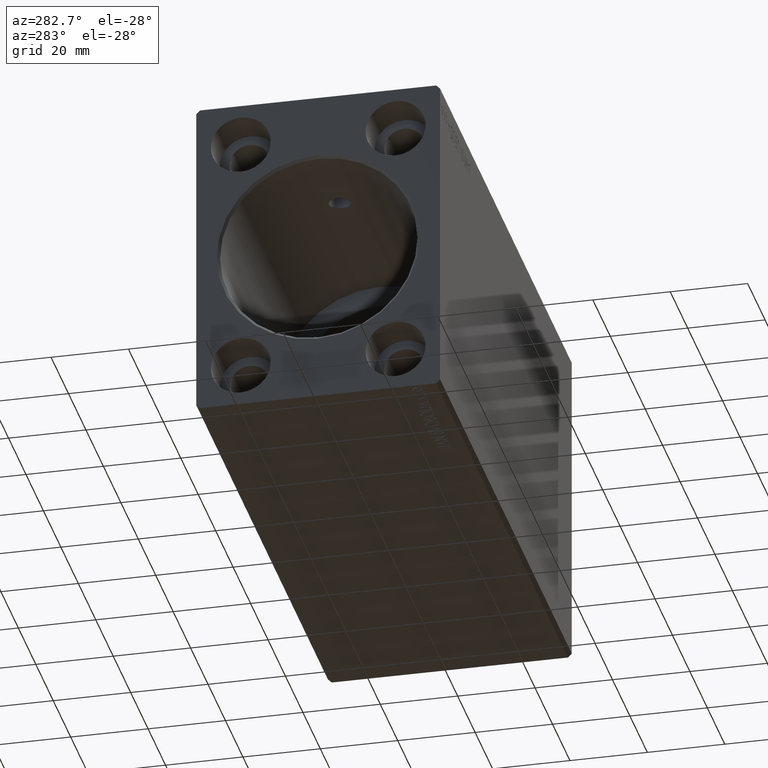
[diagram: clean part render]
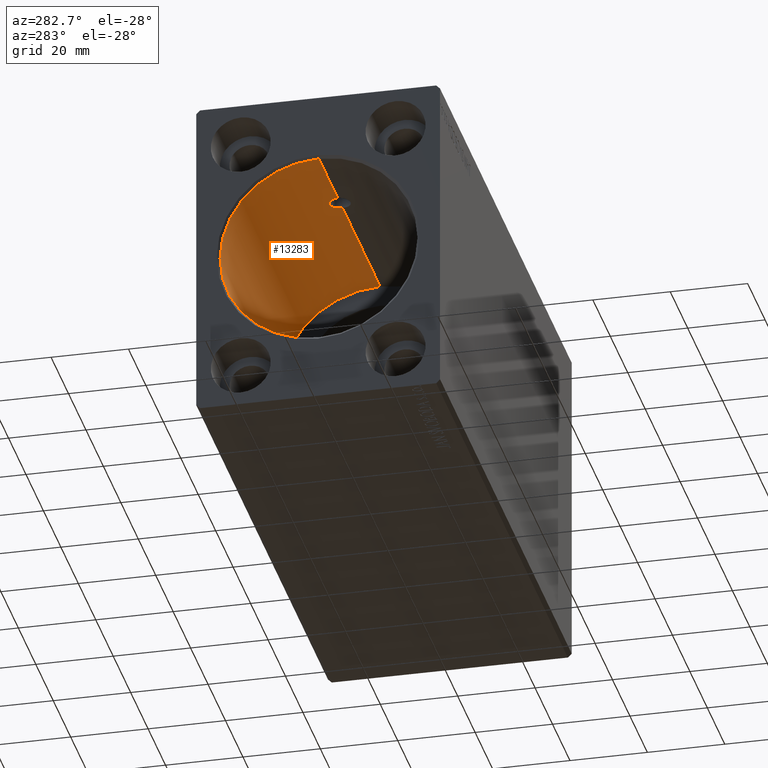
[diagram: same view with one face highlighted and labeled with its STEP entity id]
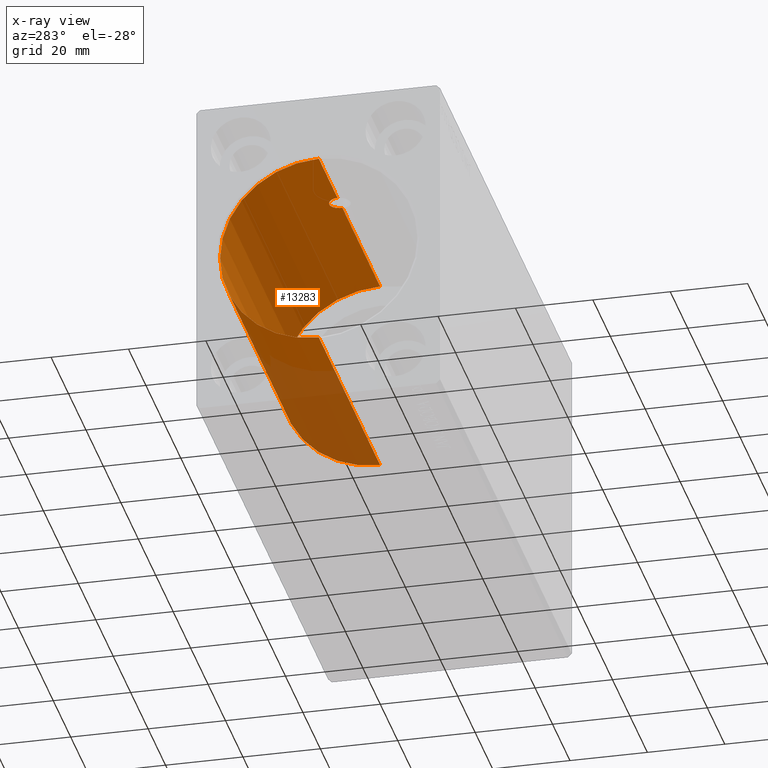
[diagram: x-ray of the same camera — body ghosted, the highlighted face saturated]
A machine part, auxiliary view. The second image highlights one B-rep face of the part: STEP entity #13283.
The next image is the same camera in x-ray: the body ghosted, the highlighted face saturated — about 24% of this face is hidden behind the body in this view.
In plain terms, the highlighted cylindrical surface (partial cylindrical patch) has radius 25.5 mm, axis along (-1, -0, -0).
Its self-contained STEP definition (entity closure, byte-faithful):
#671 = VERTEX_POINT ( 'NONE', #22326 ) ;
#712 = CARTESIAN_POINT ( 'NONE',  ( 23.32301682331572223, 2.186849450543038031, 25.40625268806380888 ) ) ;
#780 = DIRECTION ( 'NONE',  ( -1.000000000000000000, -0.000000000000000000, -0.000000000000000000 ) ) ;
#1136 = CARTESIAN_POINT ( 'NONE',  ( 22.25000000000001421, 0.1795439971740298846, 25.50000000000000355 ) ) ;
#1341 = CARTESIAN_POINT ( 'NONE',  ( 24.82149231634159392, 2.750065238390863254, 25.35127494207982579 ) ) ;
#3791 = LINE ( 'NONE', #19870, #17100 ) ;
#3992 = LINE ( 'NONE', #30143, #17278 ) ;
#4350 = CARTESIAN_POINT ( 'NONE',  ( 22.52839946558069428, 1.219090660012198235, 25.47138780348911880 ) ) ;
#4562 = CARTESIAN_POINT ( 'NONE',  ( 22.92734681539844743, 1.816470127182206351, 25.43554610187513276 ) ) ;
#7049 = EDGE_CURVE ( 'NONE', #671, #36176, #3791, .T. ) ;
#7255 = VERTEX_POINT ( 'NONE', #32188 ) ;
#7712 = DIRECTION ( 'NONE',  ( 0.000000000000000000, 0.000000000000000000, 1.000000000000000000 ) ) ;
#7776 = CARTESIAN_POINT ( 'NONE',  ( 27.18703867904413585, 1.676797748643022556, 25.44525020880456978 ) ) ;
#7988 = CARTESIAN_POINT ( 'NONE',  ( 22.33838551574565301, 0.7145913488848024686, 25.49059565528228077 ) ) ;
#8284 = EDGE_CURVE ( 'NONE', #7255, #20107, #9575, .T. ) ;
#8381 = DIRECTION ( 'NONE',  ( -1.000000000000000000, -0.000000000000000000, -0.000000000000000000 ) ) ;
#8781 = CARTESIAN_POINT ( 'NONE',  ( 71.00000000000000000, 3.122849337825750222E-15, -25.50000000000000000 ) ) ;
#9170 = ORIENTED_EDGE ( 'NONE', *, *, #22027, .T. ) ;
#9575 = CIRCLE ( 'NONE', #39692, 25.50000000000000000 ) ;
#10364 = CARTESIAN_POINT ( 'NONE',  ( 22.39041548042342455, 0.8860360456872151680, 25.48514702329194748 ) ) ;
#10480 = CIRCLE ( 'NONE', #16625, 25.50000000000000000 ) ;
#10578 = CARTESIAN_POINT ( 'NONE',  ( 23.78171663419919923, 2.471999237561343765, 25.37999251845406334 ) ) ;
#10794 = CARTESIAN_POINT ( 'NONE',  ( 27.47113695655388099, 1.220029612915041195, 25.47134265733709668 ) ) ;
#11208 = CARTESIAN_POINT ( 'NONE',  ( 27.66219387477480041, 0.7122967098376459250, 25.49065645963404236 ) ) ;
#11358 = FACE_OUTER_BOUND ( 'NONE', #21783, .T. ) ;
#13283 = ADVANCED_FACE ( 'NONE', ( #11358 ), #36430, .F. ) ;
#13363 = ORIENTED_EDGE ( 'NONE', *, *, #27995, .F. ) ;
#13733 = DIRECTION ( 'NONE',  ( -1.000000000000000000, -0.000000000000000000, -0.000000000000000000 ) ) ;
#13797 = CARTESIAN_POINT ( 'NONE',  ( 27.75000000000000000, -1.939261765858355171E-16, 25.50000000000000000 ) ) ;
#14273 = CARTESIAN_POINT ( 'NONE',  ( 27.75000000000000000, -1.939261765858355171E-16, 25.50000000000000000 ) ) ;
#14430 = CARTESIAN_POINT ( 'NONE',  ( 23.62085709230549213, 2.385906103428720115, 25.38833271868618269 ) ) ;
#14912 = DIRECTION ( 'NONE',  ( -1.000000000000000000, 0.000000000000000000, 0.000000000000000000 ) ) ;
#15238 = EDGE_CURVE ( 'NONE', #7255, #30029, #3992, .T. ) ;
#15956 = ORIENTED_EDGE ( 'NONE', *, *, #15238, .T. ) ;
#16625 = AXIS2_PLACEMENT_3D ( 'NONE', #37813, #14912, #41442 ) ;
#16949 = DIRECTION ( 'NONE',  ( 0.000000000000000000, 0.000000000000000000, 1.000000000000000000 ) ) ;
#16989 = VERTEX_POINT ( 'NONE', #41418 ) ;
#17010 = CARTESIAN_POINT ( 'NONE',  ( 25.18051211663668809, 2.749934396358980404, 25.35128913526986594 ) ) ;
#17100 = VECTOR ( 'NONE', #29723, 1000.000000000000000 ) ;
#17278 = VECTOR ( 'NONE', #780, 1000.000000000000000 ) ;
#17639 = CARTESIAN_POINT ( 'NONE',  ( 26.37837412836197615, 2.386478692563840376, 25.38828281995185066 ) ) ;
#17786 = CARTESIAN_POINT ( 'NONE',  ( 71.00000000000000000, 0.000000000000000000, 0.000000000000000000 ) ) ;
#18119 = ORIENTED_EDGE ( 'NONE', *, *, #23423, .T. ) ;
#19096 = B_SPLINE_CURVE_WITH_KNOTS ( 'NONE', 3,
 ( #13797, #33914, #26859, #11208, #20437, #10794, #40141, #7776, #40556, #24276, #27280, #17639, #37340, #30498, #33702, #30706, #17010, #1341, #39925, #36920, #37128, #10578, #14430, #712, #39710, #4562, #20649, #27489, #4350, #10364, #7988, #33493, #1136, #29859 ),
 .UNSPECIFIED., .F., .F.,
 ( 4, 2, 2, 2, 2, 2, 2, 2, 2, 2, 2, 2, 2, 2, 2, 2, 4 ),
 ( 1.884390960114856823E-19, 0.0005377504153540449200, 0.001075500830708089406, 0.001613251246062134001, 0.002151001661416177945, 0.002688752076770222540, 0.003226502492124267568, 0.003764252907478311729, 0.004302003322832356758, 0.004839753738186401352, 0.005377504153540445947, 0.005915254568894491409, 0.006453004984248536004, 0.006990755399602580598, 0.007528505814956624326, 0.008066256230310668920, 0.008604006645664711780 ),
 .UNSPECIFIED. ) ;
#19870 = CARTESIAN_POINT ( 'NONE',  ( 71.00000000000000000, 0.000000000000000000, 25.50000000000000000 ) ) ;
#20107 = VERTEX_POINT ( 'NONE', #8781 ) ;
#20437 = CARTESIAN_POINT ( 'NONE',  ( 27.60924546800651669, 0.8870333714824091276, 25.48511214065472075 ) ) ;
#20649 = CARTESIAN_POINT ( 'NONE',  ( 22.81367472156660625, 1.677664168439503056, 25.44518982471207735 ) ) ;
#21783 = EDGE_LOOP ( 'NONE', ( #13363, #23650, #15956, #18119, #23751, #9170 ) ) ;
#22027 = EDGE_CURVE ( 'NONE', #36176, #16989, #10480, .T. ) ;
#22326 = CARTESIAN_POINT ( 'NONE',  ( 22.25000000000000355, -2.520173933909566415E-23, 25.50000000000000000 ) ) ;
#23423 = EDGE_CURVE ( 'NONE', #30029, #671, #19096, .T. ) ;
#23576 = DIRECTION ( 'NONE',  ( -1.000000000000000000, 0.000000000000000000, 0.000000000000000000 ) ) ;
#23650 = ORIENTED_EDGE ( 'NONE', *, *, #8284, .F. ) ;
#23751 = ORIENTED_EDGE ( 'NONE', *, *, #7049, .T. ) ;
#24276 = CARTESIAN_POINT ( 'NONE',  ( 26.81737431410829942, 2.071662962496987337, 25.41602582305861446 ) ) ;
#24955 = VECTOR ( 'NONE', #8381, 1000.000000000000000 ) ;
#25520 = CARTESIAN_POINT ( 'NONE',  ( 0.7000000000000616840, 0.000000000000000000, 25.50000000000000000 ) ) ;
#25775 = CARTESIAN_POINT ( 'NONE',  ( 71.00000000000000000, 0.000000000000000000, 0.000000000000000000 ) ) ;
#26859 = CARTESIAN_POINT ( 'NONE',  ( 27.73214168976364746, 0.3606169945932546916, 25.49805656769039786 ) ) ;
#27280 = CARTESIAN_POINT ( 'NONE',  ( 26.67899044711617407, 2.185448893543724402, 25.40637711736232518 ) ) ;
#27489 = CARTESIAN_POINT ( 'NONE',  ( 22.61454708910615352, 1.379923800465350903, 25.46307233195958375 ) ) ;
#27995 = EDGE_CURVE ( 'NONE', #20107, #16989, #37941, .T. ) ;
#29723 = DIRECTION ( 'NONE',  ( -1.000000000000000000, -0.000000000000000000, -0.000000000000000000 ) ) ;
#29859 = CARTESIAN_POINT ( 'NONE',  ( 22.25000000000000355, -2.520173933909566415E-23, 25.50000000000000000 ) ) ;
#30029 = VERTEX_POINT ( 'NONE', #14273 ) ;
#30143 = CARTESIAN_POINT ( 'NONE',  ( 71.00000000000000000, 0.000000000000000000, 25.50000000000000000 ) ) ;
#30498 = CARTESIAN_POINT ( 'NONE',  ( 25.88758609357713780, 2.608978271227876178, 25.36627648877552232 ) ) ;
#30706 = CARTESIAN_POINT ( 'NONE',  ( 25.35904867845210831, 2.732462580437266642, 25.35320314918266149 ) ) ;
#32188 = CARTESIAN_POINT ( 'NONE',  ( 71.00000000000000000, 0.000000000000000000, 25.50000000000000000 ) ) ;
#33493 = CARTESIAN_POINT ( 'NONE',  ( 22.26799626100015672, 0.3619226834345089516, 25.49804148612619414 ) ) ;
#33702 = CARTESIAN_POINT ( 'NONE',  ( 25.71412694923393261, 2.661820881908839809, 25.36071708903062571 ) ) ;
#33914 = CARTESIAN_POINT ( 'NONE',  ( 27.75000000000000355, 0.1818411675653315851, 25.50000000000000000 ) ) ;
#36176 = VERTEX_POINT ( 'NONE', #25520 ) ;
#36430 = CYLINDRICAL_SURFACE ( 'NONE', #37747, 25.50000000000000000 ) ;
#36920 = CARTESIAN_POINT ( 'NONE',  ( 24.28632799911198958, 2.661865185172591186, 25.36071218702769769 ) ) ;
#37128 = CARTESIAN_POINT ( 'NONE',  ( 24.11483395142550634, 2.609880391194552285, 25.36618467193965643 ) ) ;
#37326 = CARTESIAN_POINT ( 'NONE',  ( 71.00000000000000000, 3.122849337825750222E-15, -25.50000000000000000 ) ) ;
#37340 = CARTESIAN_POINT ( 'NONE',  ( 26.21848376133623759, 2.471815935018343513, 25.38000938747136814 ) ) ;
#37747 = AXIS2_PLACEMENT_3D ( 'NONE', #17786, #13733, #16949 ) ;
#37813 = CARTESIAN_POINT ( 'NONE',  ( 0.7000000000000616840, 0.000000000000000000, 0.000000000000000000 ) ) ;
#37941 = LINE ( 'NONE', #37326, #24955 ) ;
#39692 = AXIS2_PLACEMENT_3D ( 'NONE', #25775, #23576, #7712 ) ;
#39710 = CARTESIAN_POINT ( 'NONE',  ( 23.18411208796797141, 2.073163292536370328, 25.41591161430256918 ) ) ;
#39925 = CARTESIAN_POINT ( 'NONE',  ( 24.63913991527716263, 2.732148236853050971, 25.35323677381548535 ) ) ;
#40141 = CARTESIAN_POINT ( 'NONE',  ( 27.38664218485788382, 1.377943378715642098, 25.46318285139502891 ) ) ;
#40556 = CARTESIAN_POINT ( 'NONE',  ( 27.07094674874814899, 1.818190416763843409, 25.43541506791175522 ) ) ;
#41418 = CARTESIAN_POINT ( 'NONE',  ( 0.7000000000000616840, 3.122849337825750222E-15, -25.50000000000000000 ) ) ;
#41442 = DIRECTION ( 'NONE',  ( 0.000000000000000000, 0.000000000000000000, -1.000000000000000000 ) ) ;